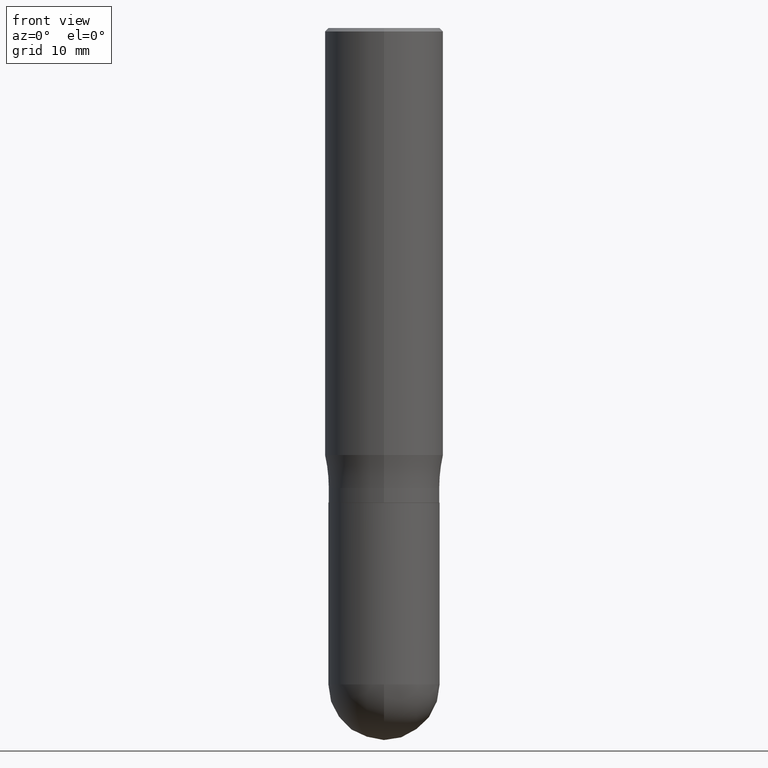
[diagram: clean part render]
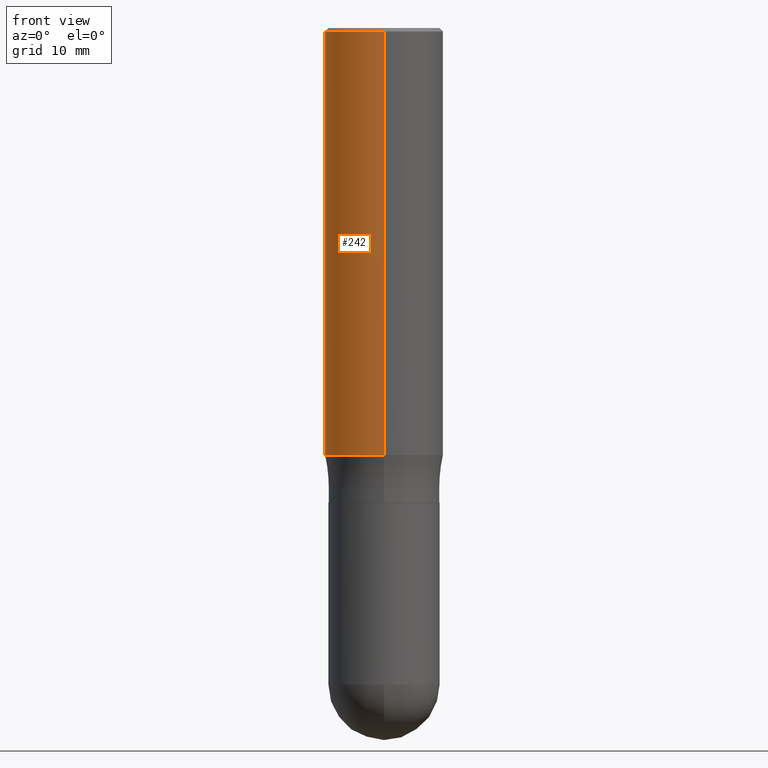
[diagram: same view with one face highlighted and labeled with its STEP entity id]
A machine part, front view. The second image highlights one B-rep face of the part: STEP entity #242.
In plain terms, the highlighted cylindrical surface (partial cylindrical patch) has radius 6.35 mm, axis along (-0, 0, 1).
Its self-contained STEP definition (entity closure, byte-faithful):
#7 = DIRECTION ( 'NONE',  ( -2.444769702225320447E-29, 3.492482495504128512E-15, 1.000000000000000000 ) ) ;
#23 = CARTESIAN_POINT ( 'NONE',  ( 1.776356839400294641E-15, 0.2499999999999936717, -1.799231703909000002 ) ) ;
#43 = ORIENTED_EDGE ( 'NONE', *, *, #187, .T. ) ;
#50 = ORIENTED_EDGE ( 'NONE', *, *, #336, .F. ) ;
#53 = CARTESIAN_POINT ( 'NONE',  ( 3.667154553337987905E-31, -5.238723743256204132E-17, -0.01500000000000003067 ) ) ;
#55 = ORIENTED_EDGE ( 'NONE', *, *, #496, .T. ) ;
#65 = VERTEX_POINT ( 'NONE', #365 ) ;
#75 = EDGE_CURVE ( 'NONE', #355, #238, #441, .T. ) ;
#105 = CARTESIAN_POINT ( 'NONE',  ( -1.715124499442882299E-15, -0.2500000000000000555, -0.01499999999999915637 ) ) ;
#154 = DIRECTION ( 'NONE',  ( -6.982962677686265922E-15, -1.000000000000000000, 3.278217592397115862E-15 ) ) ;
#173 = DIRECTION ( 'NONE',  ( -6.982962677686265922E-15, -1.000000000000000000, 3.491643216902136408E-15 ) ) ;
#180 = CIRCLE ( 'NONE', #269, 0.2500000000000000000 ) ;
#187 = EDGE_CURVE ( 'NONE', #247, #65, #180, .T. ) ;
#217 = FACE_OUTER_BOUND ( 'NONE', #222, .T. ) ;
#222 = EDGE_LOOP ( 'NONE', ( #50, #43, #55, #230 ) ) ;
#223 = AXIS2_PLACEMENT_3D ( 'NONE', #53, #7, #173 ) ;
#230 = ORIENTED_EDGE ( 'NONE', *, *, #75, .F. ) ;
#232 = DIRECTION ( 'NONE',  ( -6.982962677686265922E-15, -1.000000000000000000, 3.492482495504128512E-15 ) ) ;
#237 = LINE ( 'NONE', #431, #399 ) ;
#238 = VERTEX_POINT ( 'NONE', #105 ) ;
#239 = DIRECTION ( 'NONE',  ( -2.444769702225320447E-29, 3.492482495504128512E-15, 1.000000000000000000 ) ) ;
#242 = ADVANCED_FACE ( 'NONE', ( #217 ), #420, .T. ) ;
#247 = VERTEX_POINT ( 'NONE', #23 ) ;
#254 = LINE ( 'NONE', #439, #500 ) ;
#269 = AXIS2_PLACEMENT_3D ( 'NONE', #309, #272, #154 ) ;
#270 = CARTESIAN_POINT ( 'NONE',  ( 0.000000000000000000, 0.000000000000000000, 0.000000000000000000 ) ) ;
#272 = DIRECTION ( 'NONE',  ( -2.444769702225320447E-29, 3.492482495504128512E-15, 1.000000000000000000 ) ) ;
#309 = CARTESIAN_POINT ( 'NONE',  ( 4.398707156999959625E-29, -6.283785231258246916E-15, -1.799231703908999114 ) ) ;
#336 = EDGE_CURVE ( 'NONE', #247, #355, #237, .T. ) ;
#355 = VERTEX_POINT ( 'NONE', #433 ) ;
#365 = CARTESIAN_POINT ( 'NONE',  ( -1.745740669421522107E-15, -0.2500000000000062728, -1.799231703908998448 ) ) ;
#399 = VECTOR ( 'NONE', #239, 39.37007874015748143 ) ;
#420 = CYLINDRICAL_SURFACE ( 'NONE', #493, 0.2500000000000000000 ) ;
#431 = CARTESIAN_POINT ( 'NONE',  ( 1.776356839400250267E-15, 0.2500000000000000000, -8.731206238760321279E-16 ) ) ;
#433 = CARTESIAN_POINT ( 'NONE',  ( 1.745740669421566875E-15, 0.2499999999999999167, -0.01500000000000090324 ) ) ;
#439 = CARTESIAN_POINT ( 'NONE',  ( -1.745740669421566480E-15, -0.2500000000000000000, 8.731206238760321279E-16 ) ) ;
#441 = CIRCLE ( 'NONE', #223, 0.2500000000000000000 ) ;
#443 = DIRECTION ( 'NONE',  ( -2.444769702225320447E-29, 3.492482495504128512E-15, 1.000000000000000000 ) ) ;
#493 = AXIS2_PLACEMENT_3D ( 'NONE', #270, #494, #232 ) ;
#494 = DIRECTION ( 'NONE',  ( -2.444769702225320447E-29, 3.492482495504128512E-15, 1.000000000000000000 ) ) ;
#496 = EDGE_CURVE ( 'NONE', #65, #238, #254, .T. ) ;
#500 = VECTOR ( 'NONE', #443, 39.37007874015748143 ) ;